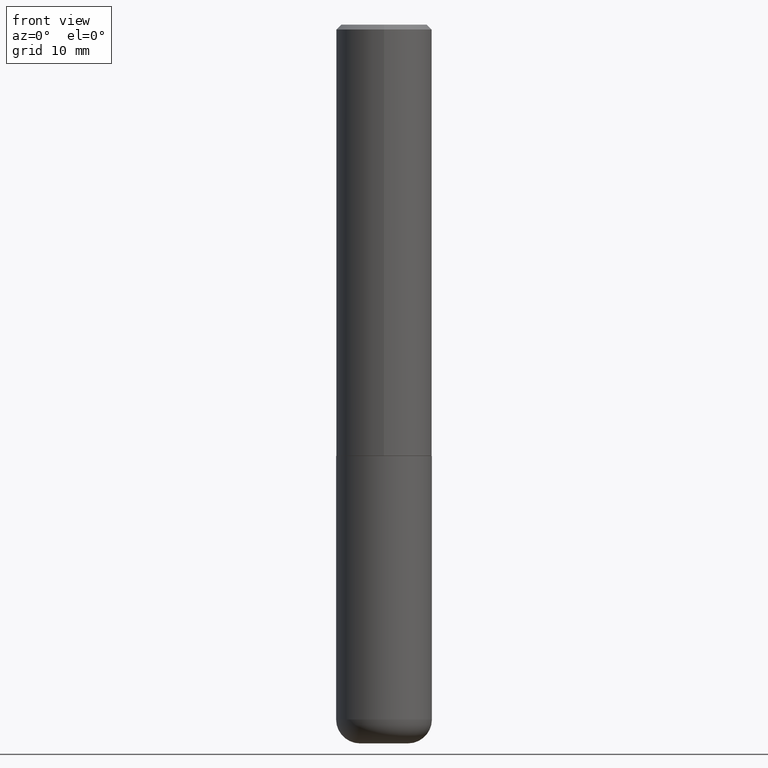
[diagram: clean part render]
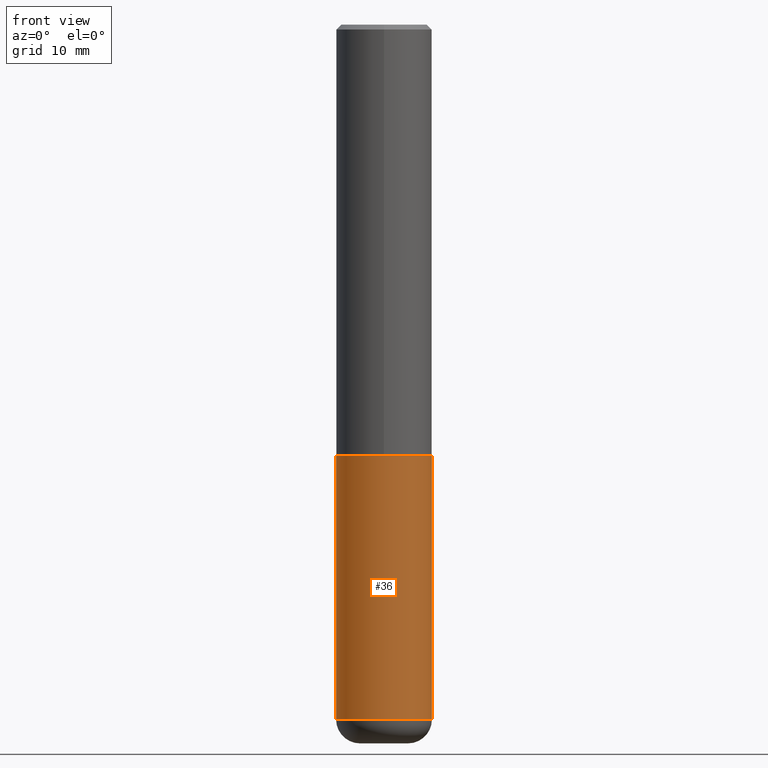
[diagram: same view with one face highlighted and labeled with its STEP entity id]
A machine part, front view. The second image highlights one B-rep face of the part: STEP entity #36.
In plain terms, the highlighted cylindrical surface (partial cylindrical patch) has radius 5 mm, axis along (-0, 0, 1).
Its self-contained STEP definition (entity closure, byte-faithful):
#6 = EDGE_CURVE ( 'NONE', #149, #117, #176, .T. ) ;
#15 = DIRECTION ( 'NONE',  ( 1.000000000000000000, -6.982962677686267499E-15, 0.000000000000000000 ) ) ;
#33 = EDGE_CURVE ( 'NONE', #306, #265, #368, .T. ) ;
#36 = ADVANCED_FACE ( 'NONE', ( #80 ), #407, .T. ) ;
#40 = ORIENTED_EDGE ( 'NONE', *, *, #45, .T. ) ;
#45 = EDGE_CURVE ( 'NONE', #306, #149, #313, .T. ) ;
#55 = VECTOR ( 'NONE', #57, 39.37007874015748143 ) ;
#57 = DIRECTION ( 'NONE',  ( -2.445468806185136877E-29, 3.491481338843145188E-15, 1.000000000000000000 ) ) ;
#80 = FACE_OUTER_BOUND ( 'NONE', #392, .T. ) ;
#101 = VECTOR ( 'NONE', #305, 39.37007874015748143 ) ;
#113 = CIRCLE ( 'NONE', #150, 0.1968500000000000250 ) ;
#117 = VERTEX_POINT ( 'NONE', #343 ) ;
#123 = DIRECTION ( 'NONE',  ( 1.000000000000000000, -6.982962677686267499E-15, 0.000000000000000000 ) ) ;
#132 = CARTESIAN_POINT ( 'NONE',  ( 0.1968500000000001915, -1.134068053669641561E-14, -2.854399999999999604 ) ) ;
#146 = ORIENTED_EDGE ( 'NONE', *, *, #33, .F. ) ;
#149 = VERTEX_POINT ( 'NONE', #132 ) ;
#150 = AXIS2_PLACEMENT_3D ( 'NONE', #228, #160, #123 ) ;
#153 = DIRECTION ( 'NONE',  ( 1.000000000000000000, -6.982962677686265922E-15, 4.876176775795935793E-29 ) ) ;
#160 = DIRECTION ( 'NONE',  ( -2.445468806185136597E-29, 3.491481338843145583E-15, 1.000000000000000000 ) ) ;
#176 = LINE ( 'NONE', #276, #55 ) ;
#188 = AXIS2_PLACEMENT_3D ( 'NONE', #249, #240, #15 ) ;
#202 = CARTESIAN_POINT ( 'NONE',  ( -0.1968500000000000250, -6.677267535467378966E-15, -1.771699999999999608 ) ) ;
#213 = CARTESIAN_POINT ( 'NONE',  ( -0.1968500000000000250, 1.398703375343757393E-15, -9.682923725166783677E-30 ) ) ;
#228 = CARTESIAN_POINT ( 'NONE',  ( 4.332637083918205306E-29, -6.185857488028398715E-15, -1.771699999999999608 ) ) ;
#237 = EDGE_CURVE ( 'NONE', #265, #117, #113, .T. ) ;
#240 = DIRECTION ( 'NONE',  ( -2.445468806185136597E-29, 3.491481338843145583E-15, 1.000000000000000000 ) ) ;
#248 = DIRECTION ( 'NONE',  ( -2.445468806185136597E-29, 3.491481338843145583E-15, 1.000000000000000000 ) ) ;
#249 = CARTESIAN_POINT ( 'NONE',  ( 6.980346160374851918E-29, -9.966084333593872426E-15, -2.854399999999999604 ) ) ;
#265 = VERTEX_POINT ( 'NONE', #202 ) ;
#276 = CARTESIAN_POINT ( 'NONE',  ( 0.1968500000000000250, -1.374596203102541608E-15, 9.598753983154300858E-30 ) ) ;
#295 = CARTESIAN_POINT ( 'NONE',  ( -0.1968500000000001915, -8.567380958250113850E-15, -2.854399999999999604 ) ) ;
#305 = DIRECTION ( 'NONE',  ( -2.445468806185136877E-29, 3.491481338843145188E-15, 1.000000000000000000 ) ) ;
#306 = VERTEX_POINT ( 'NONE', #295 ) ;
#308 = CARTESIAN_POINT ( 'NONE',  ( 0.000000000000000000, 0.000000000000000000, 0.000000000000000000 ) ) ;
#313 = CIRCLE ( 'NONE', #188, 0.1968500000000000250 ) ;
#337 = ORIENTED_EDGE ( 'NONE', *, *, #237, .F. ) ;
#340 = AXIS2_PLACEMENT_3D ( 'NONE', #308, #248, #153 ) ;
#343 = CARTESIAN_POINT ( 'NONE',  ( 0.1968500000000000250, -7.560453691130941112E-15, -1.771699999999999608 ) ) ;
#368 = LINE ( 'NONE', #213, #101 ) ;
#392 = EDGE_LOOP ( 'NONE', ( #146, #40, #403, #337 ) ) ;
#403 = ORIENTED_EDGE ( 'NONE', *, *, #6, .T. ) ;
#407 = CYLINDRICAL_SURFACE ( 'NONE', #340, 0.1968500000000000250 ) ;